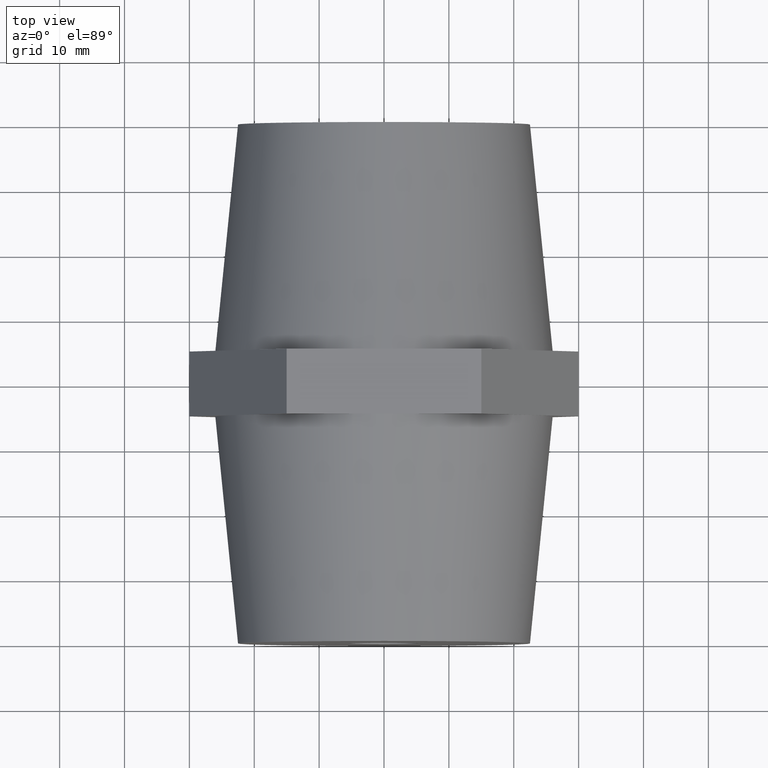
[diagram: clean part render]
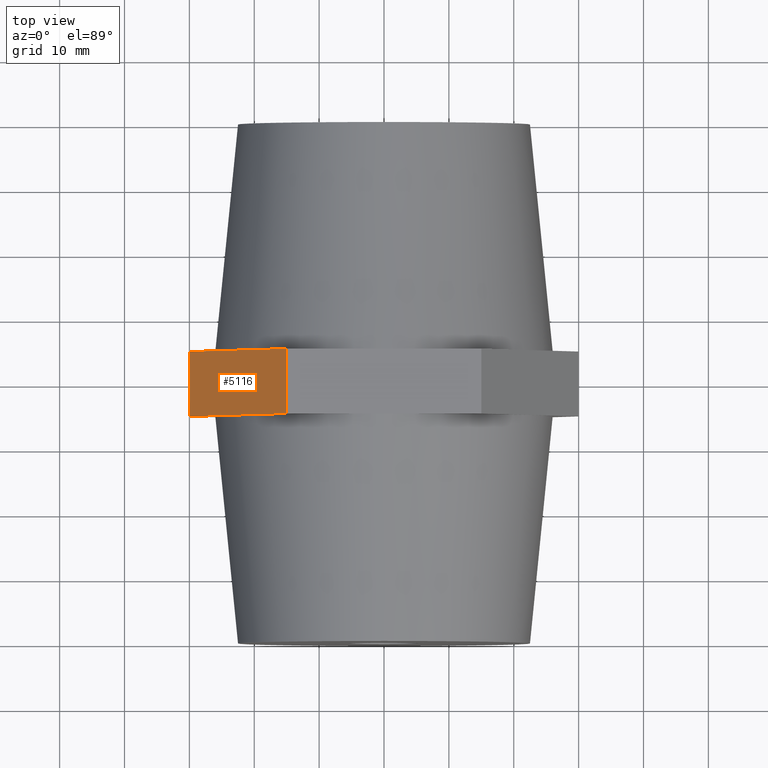
[diagram: same view with one face highlighted and labeled with its STEP entity id]
A machine part, top view. The second image highlights one B-rep face of the part: STEP entity #5116.
In plain terms, the highlighted planar face has unit normal (0.866, 0, -0.5).
Its self-contained STEP definition (entity closure, byte-faithful):
#166 = ORIENTED_EDGE ( 'NONE', *, *, #1517, .T. ) ;
#351 = DIRECTION ( 'NONE',  ( 0.4999999999999998900, 0.0000000000000000000, 0.8660254037844387100 ) ) ;
#395 = LINE ( 'NONE', #3429, #4001 ) ;
#477 = DIRECTION ( 'NONE',  ( 0.0000000000000000000, -1.000000000000000000, 0.0000000000000000000 ) ) ;
#635 = VECTOR ( 'NONE', #351, 1000.000000000000000 ) ;
#650 = DIRECTION ( 'NONE',  ( 0.8660254037844387100, 0.0000000000000000000, -0.4999999999999998900 ) ) ;
#718 = CARTESIAN_POINT ( 'NONE',  ( -22.51666049839540000, -5.000000000000000000, 13.00000000000000000 ) ) ;
#895 = VERTEX_POINT ( 'NONE', #3004 ) ;
#981 = EDGE_CURVE ( 'NONE', #895, #2123, #395, .T. ) ;
#1131 = EDGE_CURVE ( 'NONE', #1134, #3590, #2664, .T. ) ;
#1134 = VERTEX_POINT ( 'NONE', #4084 ) ;
#1146 = VECTOR ( 'NONE', #3321, 1000.000000000000000 ) ;
#1174 = CARTESIAN_POINT ( 'NONE',  ( -15.01110699893030000, -5.000000000000000000, 26.00000000000000000 ) ) ;
#1412 = DIRECTION ( 'NONE',  ( -0.4999999999999998900, 0.0000000000000000000, -0.8660254037844387100 ) ) ;
#1419 = CARTESIAN_POINT ( 'NONE',  ( -30.02221399786055000, -5.000000000000000000, 3.447789823277004700E-015 ) ) ;
#1495 = ORIENTED_EDGE ( 'NONE', *, *, #4542, .T. ) ;
#1499 = VERTEX_POINT ( 'NONE', #718 ) ;
#1517 = EDGE_CURVE ( 'NONE', #2123, #1499, #2726, .T. ) ;
#1571 = AXIS2_PLACEMENT_3D ( 'NONE', #4158, #650, #1412 ) ;
#1640 = DIRECTION ( 'NONE',  ( 0.4999999999999998900, 0.0000000000000000000, 0.8660254037844387100 ) ) ;
#1655 = EDGE_CURVE ( 'NONE', #3009, #1134, #3997, .T. ) ;
#1969 = VECTOR ( 'NONE', #2276, 1000.000000000000000 ) ;
#2090 = LINE ( 'NONE', #1419, #1969 ) ;
#2123 = VERTEX_POINT ( 'NONE', #3866 ) ;
#2275 = ORIENTED_EDGE ( 'NONE', *, *, #1131, .F. ) ;
#2276 = DIRECTION ( 'NONE',  ( 0.4999999999999998900, 0.0000000000000000000, 0.8660254037844387100 ) ) ;
#2360 = CARTESIAN_POINT ( 'NONE',  ( -30.02221399786055000, -5.000000000000000000, 3.447789823277004700E-015 ) ) ;
#2390 = EDGE_LOOP ( 'NONE', ( #166, #1495, #2275, #4962, #4446, #2502 ) ) ;
#2502 = ORIENTED_EDGE ( 'NONE', *, *, #981, .T. ) ;
#2664 = LINE ( 'NONE', #3597, #4555 ) ;
#2726 = LINE ( 'NONE', #2360, #635 ) ;
#2809 = CARTESIAN_POINT ( 'NONE',  ( -22.51666049839540000, 5.000000000000000000, 13.00000000000000000 ) ) ;
#2832 = CARTESIAN_POINT ( 'NONE',  ( -30.02221399786055000, 5.000000000000000000, 3.447789823277004700E-015 ) ) ;
#3004 = CARTESIAN_POINT ( 'NONE',  ( -30.02221399786055000, 5.000000000000000000, 3.447789823277004700E-015 ) ) ;
#3009 = VERTEX_POINT ( 'NONE', #2809 ) ;
#3147 = VECTOR ( 'NONE', #1640, 1000.000000000000000 ) ;
#3321 = DIRECTION ( 'NONE',  ( 0.4999999999999998900, 0.0000000000000000000, 0.8660254037844387100 ) ) ;
#3341 = CARTESIAN_POINT ( 'NONE',  ( -30.02221399786055000, 5.000000000000000000, 3.447789823277004700E-015 ) ) ;
#3429 = CARTESIAN_POINT ( 'NONE',  ( -30.02221399786055000, 5.000000000000000000, 3.447789823277004700E-015 ) ) ;
#3590 = VERTEX_POINT ( 'NONE', #1174 ) ;
#3597 = CARTESIAN_POINT ( 'NONE',  ( -15.01110699893030000, 5.000000000000000000, 26.00000000000000000 ) ) ;
#3866 = CARTESIAN_POINT ( 'NONE',  ( -30.02221399786055000, -5.000000000000000000, 3.447789823277004700E-015 ) ) ;
#3954 = FACE_OUTER_BOUND ( 'NONE', #2390, .T. ) ;
#3979 = EDGE_CURVE ( 'NONE', #895, #3009, #4562, .T. ) ;
#3997 = LINE ( 'NONE', #2832, #3147 ) ;
#4001 = VECTOR ( 'NONE', #4200, 1000.000000000000000 ) ;
#4084 = CARTESIAN_POINT ( 'NONE',  ( -15.01110699893030000, 5.000000000000000000, 26.00000000000000000 ) ) ;
#4158 = CARTESIAN_POINT ( 'NONE',  ( -30.02221399786055000, 5.000000000000000000, 3.447789823277004700E-015 ) ) ;
#4196 = PLANE ( 'NONE',  #1571 ) ;
#4200 = DIRECTION ( 'NONE',  ( 0.0000000000000000000, -1.000000000000000000, 0.0000000000000000000 ) ) ;
#4446 = ORIENTED_EDGE ( 'NONE', *, *, #3979, .F. ) ;
#4542 = EDGE_CURVE ( 'NONE', #1499, #3590, #2090, .T. ) ;
#4555 = VECTOR ( 'NONE', #477, 1000.000000000000000 ) ;
#4562 = LINE ( 'NONE', #3341, #1146 ) ;
#4962 = ORIENTED_EDGE ( 'NONE', *, *, #1655, .F. ) ;
#5116 = ADVANCED_FACE ( 'NONE', ( #3954 ), #4196, .F. ) ;